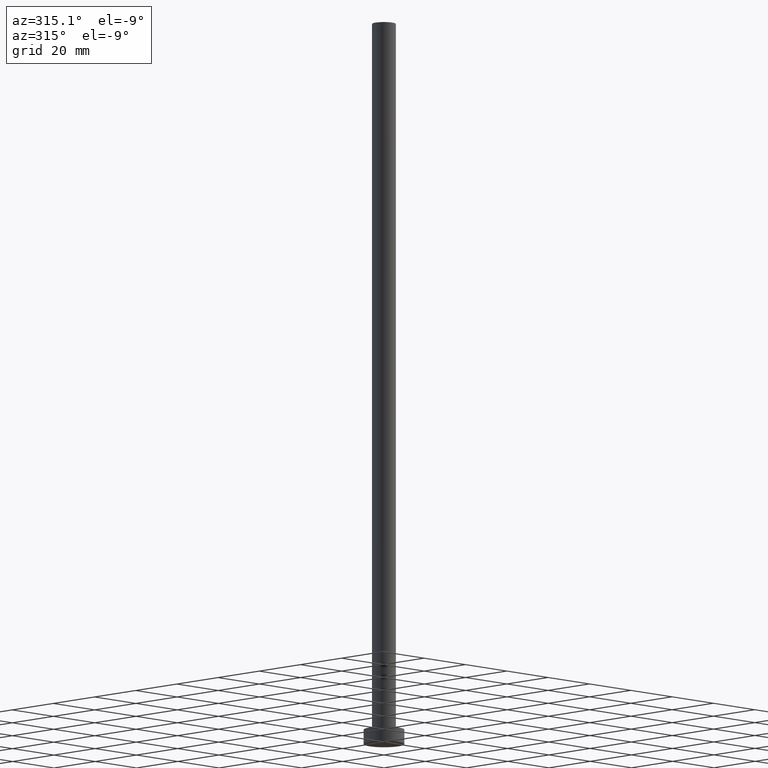
[diagram: clean part render]
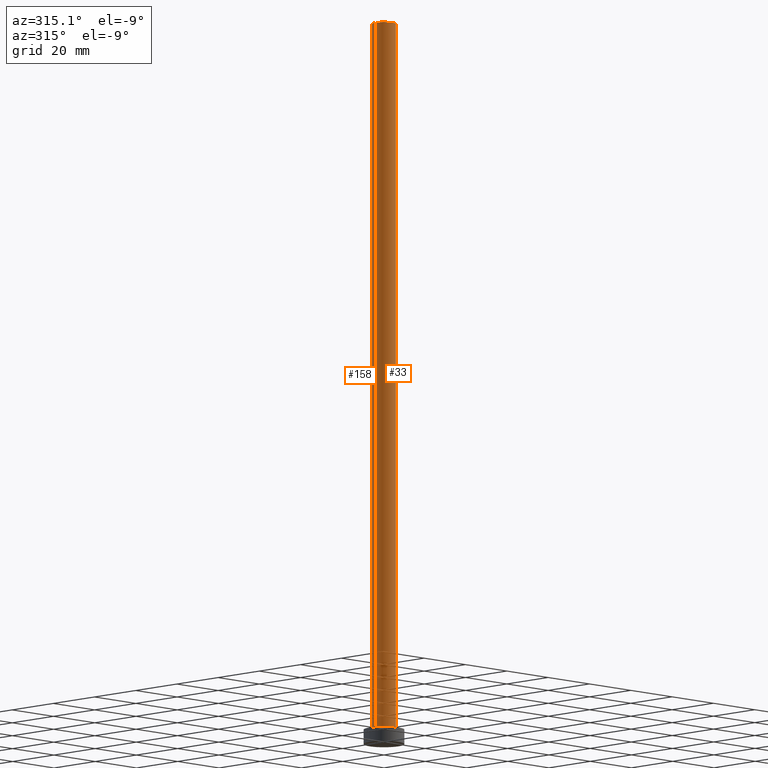
[diagram: same view with one multi-face feature highlighted, each face labeled with its STEP entity id]
A machine part, auxiliary view. The highlighted faces form ONE feature: a constant-radius fillet chain: 2 tangent blend faces with common blend radius 4.1 mm. The faces share edges in the B-rep.
Their STEP definitions:
[1] entity #33 (Cylinder):
#2 = DIRECTION ( 'NONE',  ( -1.000000000000000000, 0.000000000000000000, 0.000000000000000000 ) ) ;
#6 = AXIS2_PLACEMENT_3D ( 'NONE', #189, #214, #2 ) ;
#7 = LINE ( 'NONE', #152, #119 ) ;
#14 = EDGE_CURVE ( 'NONE', #190, #149, #151, .T. ) ;
#15 = AXIS2_PLACEMENT_3D ( 'NONE', #47, #220, #181 ) ;
#33 = ADVANCED_FACE ( 'NONE', ( #136 ), #37, .T. ) ;
#34 = VECTOR ( 'NONE', #244, 1000.000000000000000 ) ;
#37 = CYLINDRICAL_SURFACE ( 'NONE', #6, 4.099999999999999645 ) ;
#41 = DIRECTION ( 'NONE',  ( 1.000000000000000000, 0.000000000000000000, 0.000000000000000000 ) ) ;
#44 = CARTESIAN_POINT ( 'NONE',  ( -4.099999999999999645, 0.000000000000000000, 250.0000000000000000 ) ) ;
#47 = CARTESIAN_POINT ( 'NONE',  ( 0.000000000000000000, 0.000000000000000000, 5.000000000000000000 ) ) ;
#52 = VERTEX_POINT ( 'NONE', #115 ) ;
#69 = ORIENTED_EDGE ( 'NONE', *, *, #166, .F. ) ;
#70 = CARTESIAN_POINT ( 'NONE',  ( 0.000000000000000000, 0.000000000000000000, 250.0000000000000000 ) ) ;
#73 = DIRECTION ( 'NONE',  ( 0.000000000000000000, 0.000000000000000000, 1.000000000000000000 ) ) ;
#74 = DIRECTION ( 'NONE',  ( -0.000000000000000000, -0.000000000000000000, -1.000000000000000000 ) ) ;
#76 = CARTESIAN_POINT ( 'NONE',  ( -4.099999999999999645, 0.000000000000000000, 5.000000000000000000 ) ) ;
#79 = CIRCLE ( 'NONE', #15, 4.099999999999999645 ) ;
#109 = ORIENTED_EDGE ( 'NONE', *, *, #14, .F. ) ;
#110 = EDGE_CURVE ( 'NONE', #190, #130, #7, .T. ) ;
#115 = CARTESIAN_POINT ( 'NONE',  ( 4.099999999999999645, 5.021051876504147385E-16, 5.000000000000000000 ) ) ;
#119 = VECTOR ( 'NONE', #74, 1000.000000000000000 ) ;
#124 = CARTESIAN_POINT ( 'NONE',  ( 4.099999999999999645, 5.021051876504147385E-16, 250.0000000000000000 ) ) ;
#130 = VERTEX_POINT ( 'NONE', #76 ) ;
#136 = FACE_OUTER_BOUND ( 'NONE', #144, .T. ) ;
#139 = ORIENTED_EDGE ( 'NONE', *, *, #205, .T. ) ;
#144 = EDGE_LOOP ( 'NONE', ( #69, #109, #188, #139 ) ) ;
#149 = VERTEX_POINT ( 'NONE', #209 ) ;
#151 = CIRCLE ( 'NONE', #186, 4.099999999999999645 ) ;
#152 = CARTESIAN_POINT ( 'NONE',  ( -4.099999999999999645, 0.000000000000000000, 250.0000000000000000 ) ) ;
#166 = EDGE_CURVE ( 'NONE', #149, #52, #216, .T. ) ;
#181 = DIRECTION ( 'NONE',  ( 1.000000000000000000, 0.000000000000000000, 0.000000000000000000 ) ) ;
#186 = AXIS2_PLACEMENT_3D ( 'NONE', #70, #73, #41 ) ;
#188 = ORIENTED_EDGE ( 'NONE', *, *, #110, .T. ) ;
#189 = CARTESIAN_POINT ( 'NONE',  ( 0.000000000000000000, 0.000000000000000000, 250.0000000000000000 ) ) ;
#190 = VERTEX_POINT ( 'NONE', #44 ) ;
#205 = EDGE_CURVE ( 'NONE', #130, #52, #79, .T. ) ;
#209 = CARTESIAN_POINT ( 'NONE',  ( 4.099999999999999645, 5.021051876504147385E-16, 250.0000000000000000 ) ) ;
#214 = DIRECTION ( 'NONE',  ( -0.000000000000000000, -0.000000000000000000, -1.000000000000000000 ) ) ;
#216 = LINE ( 'NONE', #124, #34 ) ;
#220 = DIRECTION ( 'NONE',  ( 0.000000000000000000, 0.000000000000000000, 1.000000000000000000 ) ) ;
#244 = DIRECTION ( 'NONE',  ( -0.000000000000000000, -0.000000000000000000, -1.000000000000000000 ) ) ;
[2] entity #158 (Cylinder):
#1 = ORIENTED_EDGE ( 'NONE', *, *, #234, .T. ) ;
#7 = LINE ( 'NONE', #152, #119 ) ;
#9 = DIRECTION ( 'NONE',  ( 1.000000000000000000, 0.000000000000000000, 0.000000000000000000 ) ) ;
#11 = DIRECTION ( 'NONE',  ( 0.000000000000000000, 0.000000000000000000, 1.000000000000000000 ) ) ;
#26 = AXIS2_PLACEMENT_3D ( 'NONE', #91, #178, #198 ) ;
#34 = VECTOR ( 'NONE', #244, 1000.000000000000000 ) ;
#44 = CARTESIAN_POINT ( 'NONE',  ( -4.099999999999999645, 0.000000000000000000, 250.0000000000000000 ) ) ;
#49 = ORIENTED_EDGE ( 'NONE', *, *, #168, .F. ) ;
#52 = VERTEX_POINT ( 'NONE', #115 ) ;
#54 = FACE_OUTER_BOUND ( 'NONE', #114, .T. ) ;
#57 = CARTESIAN_POINT ( 'NONE',  ( 0.000000000000000000, 0.000000000000000000, 5.000000000000000000 ) ) ;
#58 = CARTESIAN_POINT ( 'NONE',  ( 0.000000000000000000, 0.000000000000000000, 250.0000000000000000 ) ) ;
#74 = DIRECTION ( 'NONE',  ( -0.000000000000000000, -0.000000000000000000, -1.000000000000000000 ) ) ;
#76 = CARTESIAN_POINT ( 'NONE',  ( -4.099999999999999645, 0.000000000000000000, 5.000000000000000000 ) ) ;
#84 = CIRCLE ( 'NONE', #107, 4.099999999999999645 ) ;
#91 = CARTESIAN_POINT ( 'NONE',  ( 0.000000000000000000, 0.000000000000000000, 250.0000000000000000 ) ) ;
#96 = CYLINDRICAL_SURFACE ( 'NONE', #26, 4.099999999999999645 ) ;
#107 = AXIS2_PLACEMENT_3D ( 'NONE', #58, #219, #9 ) ;
#110 = EDGE_CURVE ( 'NONE', #190, #130, #7, .T. ) ;
#114 = EDGE_LOOP ( 'NONE', ( #49, #237, #1, #129 ) ) ;
#115 = CARTESIAN_POINT ( 'NONE',  ( 4.099999999999999645, 5.021051876504147385E-16, 5.000000000000000000 ) ) ;
#119 = VECTOR ( 'NONE', #74, 1000.000000000000000 ) ;
#124 = CARTESIAN_POINT ( 'NONE',  ( 4.099999999999999645, 5.021051876504147385E-16, 250.0000000000000000 ) ) ;
#129 = ORIENTED_EDGE ( 'NONE', *, *, #110, .F. ) ;
#130 = VERTEX_POINT ( 'NONE', #76 ) ;
#149 = VERTEX_POINT ( 'NONE', #209 ) ;
#152 = CARTESIAN_POINT ( 'NONE',  ( -4.099999999999999645, 0.000000000000000000, 250.0000000000000000 ) ) ;
#158 = ADVANCED_FACE ( 'NONE', ( #54 ), #96, .T. ) ;
#163 = DIRECTION ( 'NONE',  ( 1.000000000000000000, 0.000000000000000000, 0.000000000000000000 ) ) ;
#166 = EDGE_CURVE ( 'NONE', #149, #52, #216, .T. ) ;
#168 = EDGE_CURVE ( 'NONE', #149, #190, #84, .T. ) ;
#178 = DIRECTION ( 'NONE',  ( -0.000000000000000000, -0.000000000000000000, -1.000000000000000000 ) ) ;
#190 = VERTEX_POINT ( 'NONE', #44 ) ;
#198 = DIRECTION ( 'NONE',  ( -1.000000000000000000, 0.000000000000000000, 0.000000000000000000 ) ) ;
#201 = AXIS2_PLACEMENT_3D ( 'NONE', #57, #11, #163 ) ;
#208 = CIRCLE ( 'NONE', #201, 4.099999999999999645 ) ;
#209 = CARTESIAN_POINT ( 'NONE',  ( 4.099999999999999645, 5.021051876504147385E-16, 250.0000000000000000 ) ) ;
#216 = LINE ( 'NONE', #124, #34 ) ;
#219 = DIRECTION ( 'NONE',  ( 0.000000000000000000, 0.000000000000000000, 1.000000000000000000 ) ) ;
#234 = EDGE_CURVE ( 'NONE', #52, #130, #208, .T. ) ;
#237 = ORIENTED_EDGE ( 'NONE', *, *, #166, .T. ) ;
#244 = DIRECTION ( 'NONE',  ( -0.000000000000000000, -0.000000000000000000, -1.000000000000000000 ) ) ;